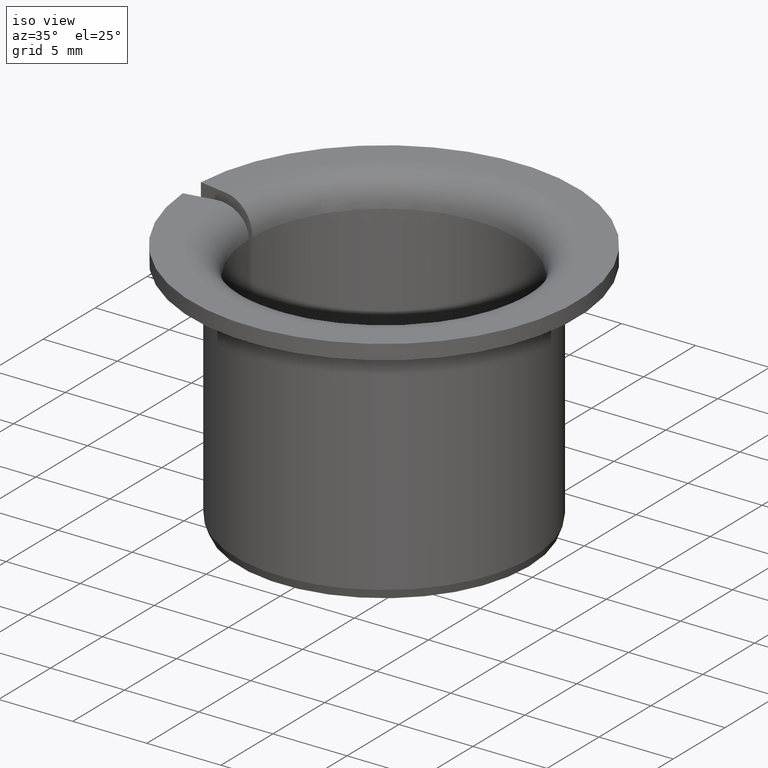
[diagram: clean part render]
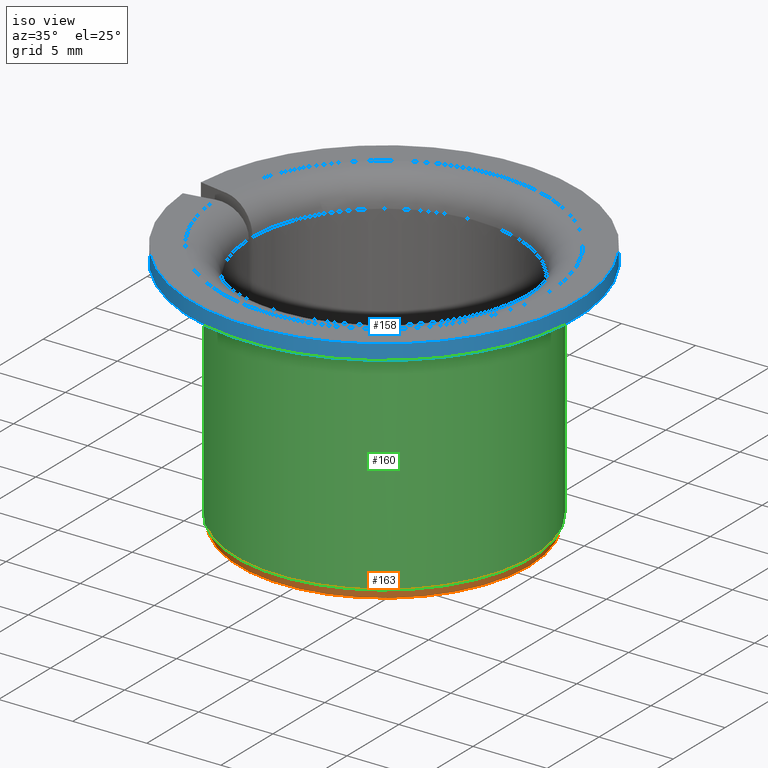
[diagram: same view with three faces highlighted in distinct colors, each labeled with its STEP entity id]
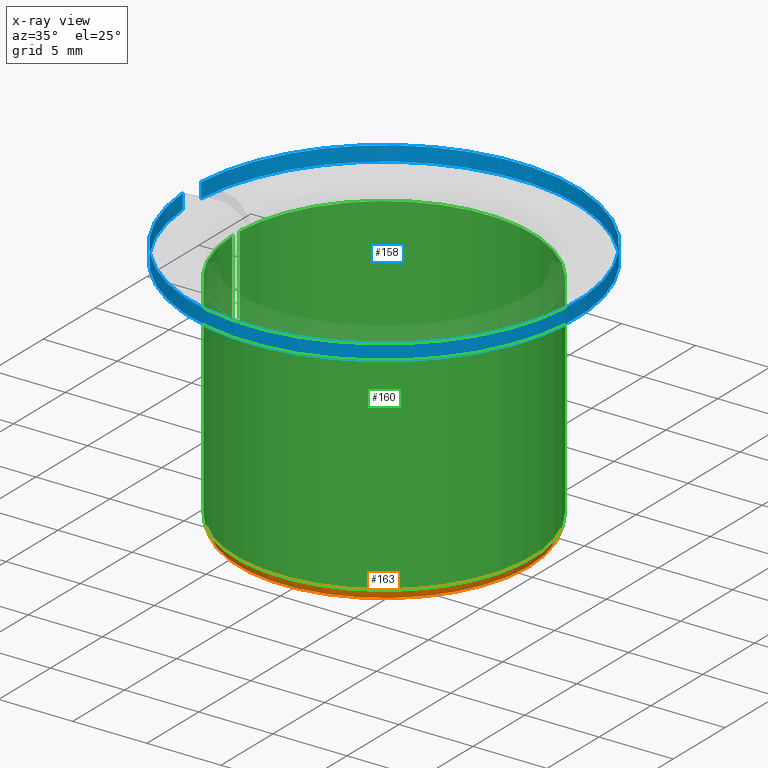
[diagram: x-ray of the same camera — body ghosted, the three highlighted faces saturated]
A machine part, iso view with three faces highlighted in distinct colors.
The next image is the same camera in x-ray (body ghosted, the three faces saturated) — at least one of them is partly hidden behind the body in this view.
Their STEP definitions:

[orange] entity #163 — the highlighted conical surface has half-angle 20 deg.
#163=ADVANCED_FACE('',(#187),#188,.T.);
#187=FACE_OUTER_BOUND('',#212,.T.);
#188=CONICAL_SURFACE('',#213,0.00978161785944028,0.349065850398864);
#212=EDGE_LOOP('',(#292,#293,#294,#295));
#213=AXIS2_PLACEMENT_3D('',#296,#297,#298);
#292=ORIENTED_EDGE('',*,*,#337,.T.);
#293=ORIENTED_EDGE('',*,*,#341,.T.);
#294=ORIENTED_EDGE('',*,*,#339,.F.);
#295=ORIENTED_EDGE('',*,*,#318,.F.);
#296=CARTESIAN_POINT('',(0.0,0.0,-3.31716774086531E-020));
#297=DIRECTION('',(-0.0,6.12323399573677E-017,1.0));
#298=DIRECTION('',(0.0,-1.0,6.12323399573677E-017));
#318=EDGE_CURVE('',#353,#355,#356,.T.);
#337=EDGE_CURVE('',#353,#384,#386,.T.);
#339=EDGE_CURVE('',#355,#388,#389,.T.);
#341=EDGE_CURVE('',#384,#388,#391,.T.);
#353=VERTEX_POINT('',#426);
#355=VERTEX_POINT('',#429);
#356=B_SPLINE_CURVE_WITH_KNOTS('',3,(#430,#431,#432,#433),.UNSPECIFIED.,.F.,.F.,(4,4),(2.13080374666438E-007,0.000639470931065652),.UNSPECIFIED.);
#384=VERTEX_POINT('',#492);
#386=CIRCLE('',#495,0.01);
#388=VERTEX_POINT('',#498);
#389=CIRCLE('',#499,0.00978161785944028);
#391=B_SPLINE_CURVE_WITH_KNOTS('',3,(#502,#503,#504,#505),.UNSPECIFIED.,.F.,.F.,(4,4),(2.13080374666438E-007,0.000639470931065649),.UNSPECIFIED.);
#426=CARTESIAN_POINT('',(0.00999381822879574,-0.000351563948365052,0.0006));
#429=CARTESIAN_POINT('',(0.00977660035524844,-0.000313262576566544,6.43083039248804E-019));
#430=CARTESIAN_POINT('',(0.00999381822879574,-0.000351563948365053,0.000600000000000001));
#431=CARTESIAN_POINT('',(0.00992142628610994,-0.000338799295683647,0.000399994768914258));
#432=CARTESIAN_POINT('',(0.00984902064639177,-0.000326032227845877,0.000199994648984621));
#433=CARTESIAN_POINT('',(0.00977660035524844,-0.000313262576566546,-1.81468546642966E-019));
#492=CARTESIAN_POINT('',(0.00999381822879574,0.000351563948365053,0.0006));
#495=AXIS2_PLACEMENT_3D('',#540,#541,#542);
#498=CARTESIAN_POINT('',(0.00977660035524845,0.000313262576566544,-5.23534779928966E-020));
#499=AXIS2_PLACEMENT_3D('',#544,#545,#546);
#502=CARTESIAN_POINT('',(0.00999381822879574,0.000351563948365054,0.000600000000000001));
#503=CARTESIAN_POINT('',(0.00992142628610994,0.000338799295683647,0.000399994768914259));
#504=CARTESIAN_POINT('',(0.00984902064639177,0.000326032227845877,0.000199994648984623));
#505=CARTESIAN_POINT('',(0.00977660035524844,0.000313262576566546,2.67959388605933E-018));
#540=CARTESIAN_POINT('',(0.0,0.0,0.0006));
#541=DIRECTION('',(0.0,-6.12323399573677E-017,-1.0));
#542=DIRECTION('',(0.0,1.0,-6.12323399573677E-017));
#544=CARTESIAN_POINT('',(0.0,0.0,-3.31716774086531E-020));
#545=DIRECTION('',(0.0,-6.12323399573677E-017,-1.0));
#546=DIRECTION('',(0.0,1.0,-6.12323399573677E-017));

[blue] entity #158 — the highlighted cylindrical surface (partial cylindrical patch) has radius 13 mm, axis along (-0, 0, -1).
#158=ADVANCED_FACE('',(#177),#178,.T.);
#177=FACE_OUTER_BOUND('',#202,.T.);
#178=CYLINDRICAL_SURFACE('',#203,0.013);
#202=EDGE_LOOP('',(#257,#258,#259,#260));
#203=AXIS2_PLACEMENT_3D('',#261,#262,#263);
#257=ORIENTED_EDGE('',*,*,#333,.T.);
#258=ORIENTED_EDGE('',*,*,#334,.T.);
#259=ORIENTED_EDGE('',*,*,#331,.F.);
#260=ORIENTED_EDGE('',*,*,#314,.F.);
#261=CARTESIAN_POINT('',(0.0,0.0,0.0));
#262=DIRECTION('',(0.0,-6.12323399573677E-017,-1.0));
#263=DIRECTION('',(0.0,1.0,-6.12323399573677E-017));
#314=EDGE_CURVE('',#345,#347,#348,.T.);
#331=EDGE_CURVE('',#347,#377,#378,.T.);
#333=EDGE_CURVE('',#345,#380,#381,.T.);
#334=EDGE_CURVE('',#380,#377,#382,.T.);
#345=VERTEX_POINT('',#408);
#347=VERTEX_POINT('',#411);
#348=LINE('',#412,#413);
#377=VERTEX_POINT('',#482);
#378=CIRCLE('',#483,0.013);
#380=VERTEX_POINT('',#486);
#381=CIRCLE('',#487,0.013);
#382=LINE('',#488,#489);
#408=CARTESIAN_POINT('',(0.0129704235998045,-0.000876419786195622,0.017));
#411=CARTESIAN_POINT('',(0.0129704235998045,-0.000876419786195621,0.016));
#412=CARTESIAN_POINT('',(0.0129704235998045,-0.000876419786195623,-4.32002406307949E-021));
#413=VECTOR('',#507,1.0);
#482=CARTESIAN_POINT('',(0.0129704235998045,0.000876419786195625,0.016));
#483=AXIS2_PLACEMENT_3D('',#530,#531,#532);
#486=CARTESIAN_POINT('',(0.0129704235998045,0.000876419786195627,0.017));
#487=AXIS2_PLACEMENT_3D('',#534,#535,#536);
#488=CARTESIAN_POINT('',(0.0129704235998045,0.000876419786195623,-8.09906996731578E-022));
#489=VECTOR('',#537,1.0);
#507=DIRECTION('',(0.0,-6.12323399573677E-017,-1.0));
#530=CARTESIAN_POINT('',(0.0,0.0,0.016));
#531=DIRECTION('',(0.0,-6.12323399573677E-017,-1.0));
#532=DIRECTION('',(0.0,1.0,-6.12323399573677E-017));
#534=CARTESIAN_POINT('',(0.0,0.0,0.017));
#535=DIRECTION('',(0.0,-6.12323399573677E-017,-1.0));
#536=DIRECTION('',(0.0,1.0,-6.12323399573677E-017));
#537=DIRECTION('',(0.0,-6.12323399573677E-017,-1.0));

[green] entity #160 — the highlighted cylindrical surface (partial cylindrical patch) has radius 10 mm, axis along (-0, 0, -1).
#160=ADVANCED_FACE('',(#181),#182,.T.);
#181=FACE_OUTER_BOUND('',#206,.T.);
#182=CYLINDRICAL_SURFACE('',#207,0.01);
#206=EDGE_LOOP('',(#271,#272,#273,#274));
#207=AXIS2_PLACEMENT_3D('',#275,#276,#277);
#271=ORIENTED_EDGE('',*,*,#330,.T.);
#272=ORIENTED_EDGE('',*,*,#336,.T.);
#273=ORIENTED_EDGE('',*,*,#337,.F.);
#274=ORIENTED_EDGE('',*,*,#317,.F.);
#275=CARTESIAN_POINT('',(0.0,0.0,0.0));
#276=DIRECTION('',(0.0,-6.12323399573677E-017,-1.0));
#277=DIRECTION('',(0.0,1.0,-6.12323399573677E-017));
#317=EDGE_CURVE('',#351,#353,#354,.T.);
#330=EDGE_CURVE('',#351,#374,#376,.T.);
#336=EDGE_CURVE('',#374,#384,#385,.T.);
#337=EDGE_CURVE('',#353,#384,#386,.T.);
#351=VERTEX_POINT('',#417);
#353=VERTEX_POINT('',#426);
#354=LINE('',#427,#428);
#374=VERTEX_POINT('',#472);
#376=CIRCLE('',#481,0.01);
#384=VERTEX_POINT('',#492);
#385=LINE('',#493,#494);
#386=CIRCLE('',#495,0.01);
#417=CARTESIAN_POINT('',(0.00999381822879573,-0.00035156394836505,0.015));
#426=CARTESIAN_POINT('',(0.00999381822879574,-0.000351563948365052,0.0006));
#427=CARTESIAN_POINT('',(0.00999381822879573,-0.000351563948365051,-3.64581751537301E-020));
#428=VECTOR('',#509,1.0);
#472=CARTESIAN_POINT('',(0.00999381822879573,0.000351563948365053,0.015));
#481=AXIS2_PLACEMENT_3D('',#527,#528,#529);
#492=CARTESIAN_POINT('',(0.00999381822879574,0.000351563948365053,0.0006));
#493=CARTESIAN_POINT('',(0.00999381822879573,0.000351563948365052,3.1328244093919E-020));
#494=VECTOR('',#539,1.0);
#495=AXIS2_PLACEMENT_3D('',#540,#541,#542);
#509=DIRECTION('',(0.0,-6.12323399573677E-017,-1.0));
#527=CARTESIAN_POINT('',(0.0,0.0,0.015));
#528=DIRECTION('',(0.0,-6.12323399573677E-017,-1.0));
#529=DIRECTION('',(0.0,1.0,-6.12323399573677E-017));
#539=DIRECTION('',(0.0,-6.12323399573677E-017,-1.0));
#540=CARTESIAN_POINT('',(0.0,0.0,0.0006));
#541=DIRECTION('',(0.0,-6.12323399573677E-017,-1.0));
#542=DIRECTION('',(0.0,1.0,-6.12323399573677E-017));